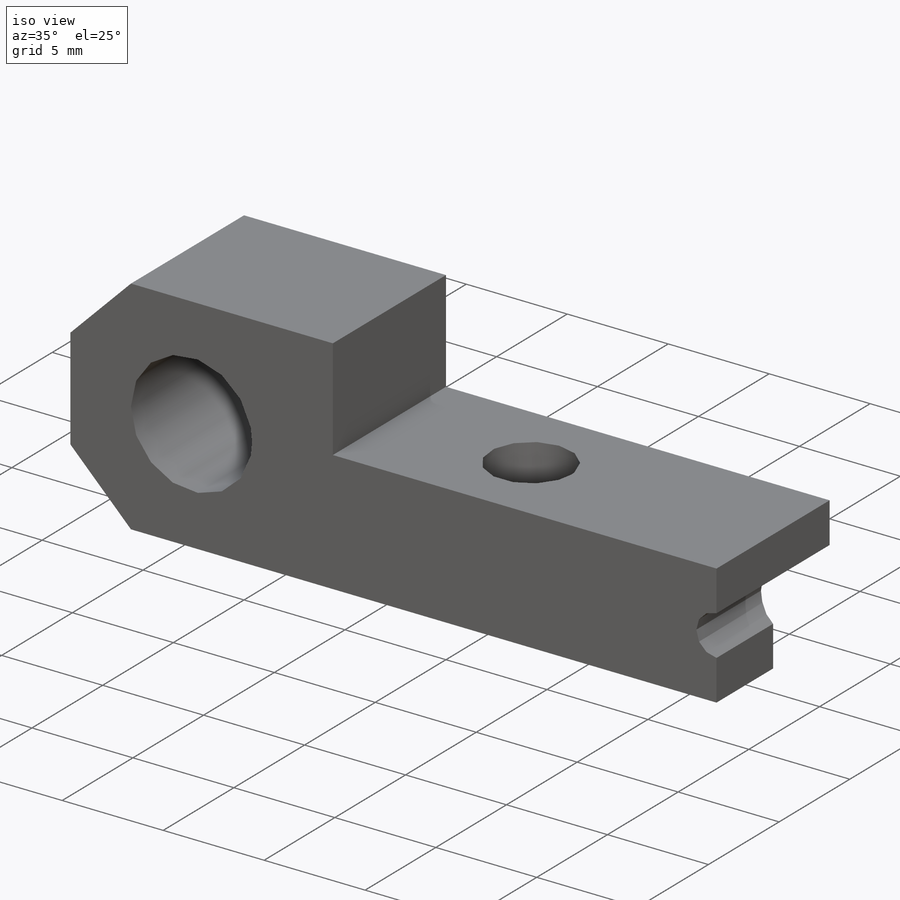
[diagram: iso view]
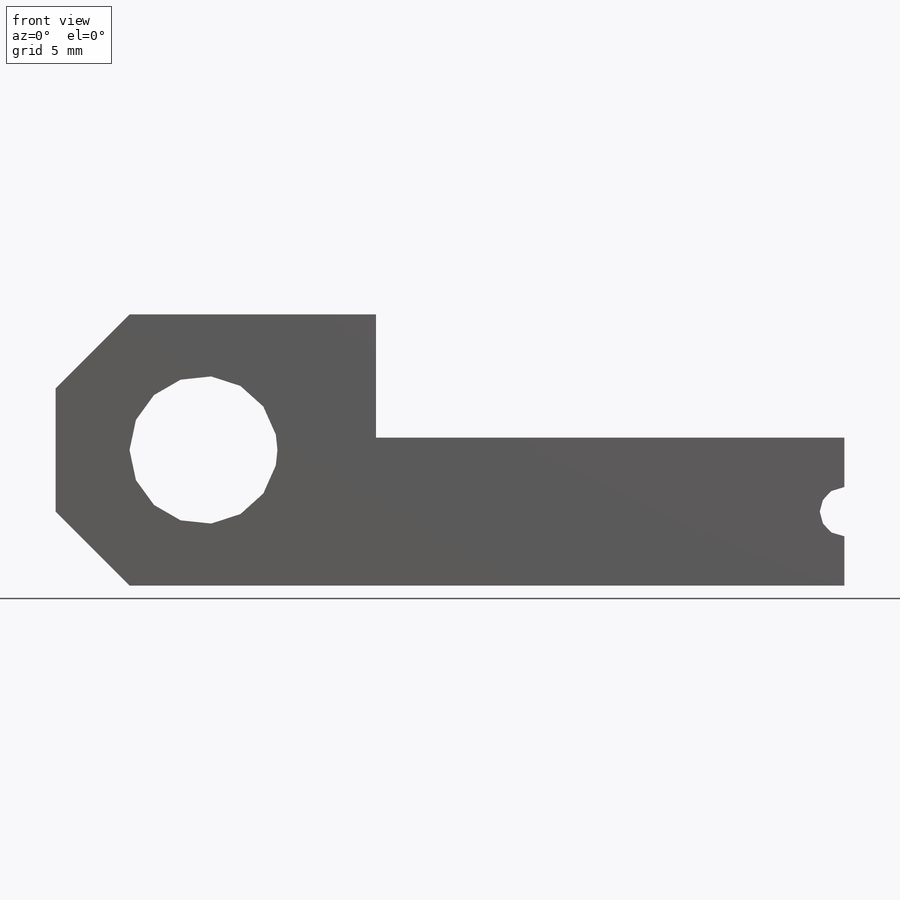
[diagram: front view]
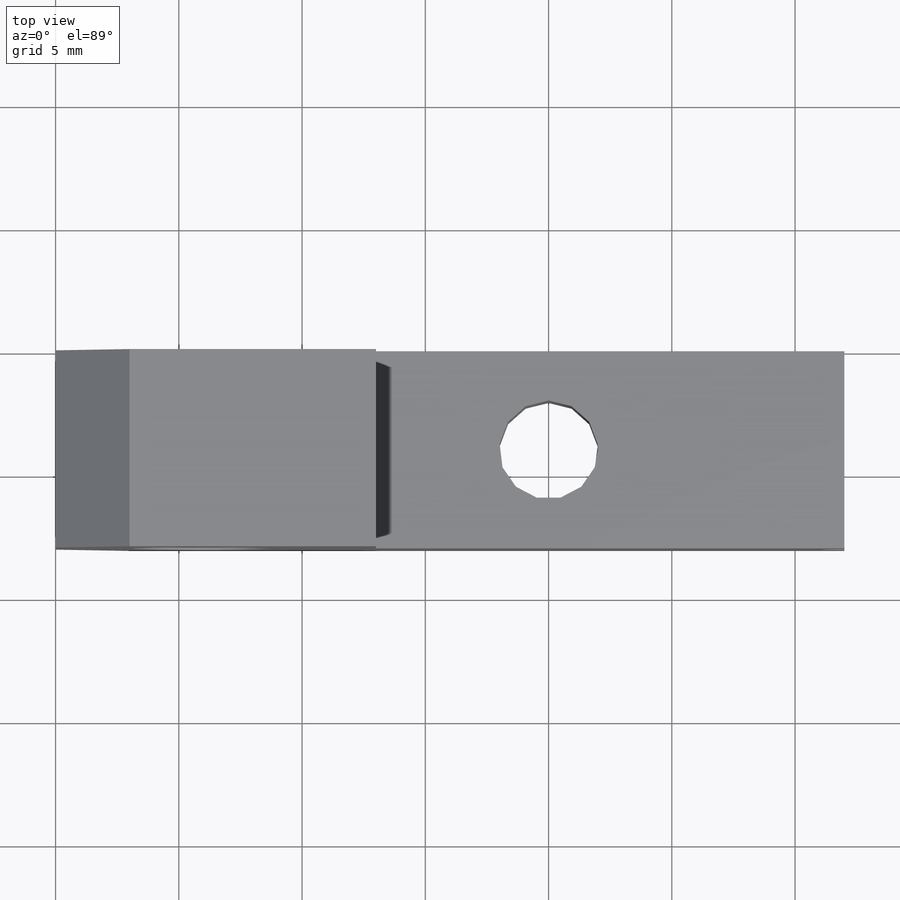
[diagram: top view]
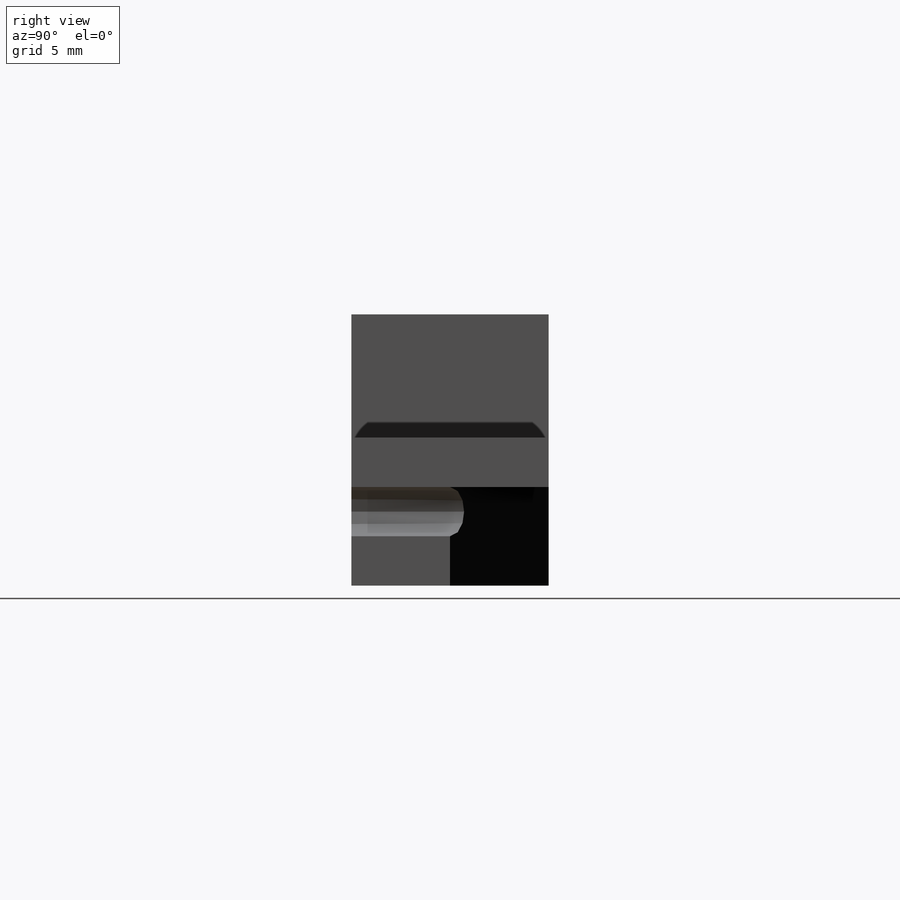
[diagram: right view]
SOLIDWORKS PART (.sldprt)
format: sldprt  version: not decoded by parser v0  size: 190,464 bytes
history: native  units: mm
features: sketch x4, plane x3, cut_extrude x3, material x1, extrude x1, chamfer x1 (+12 scaffold rows collapsed)
feature tree (25):
  scaffold x12  (default folders/planes/origin — collapsed)
  material  "Alliage 7079"
  plane  "Face"
  plane  "Dessus"
  plane  "Droite"
  sketch  "Esquisse1"  dims[c1.D5=6.0mm c1.D1=32.0mm c1.D2=11.0mm c1.D3=5.5mm c1.D4=19.0mm c2.D3=5.0mm c2.D1=19.0mm c2.D2=11.0mm c2.D4=32.0mm c2.D6=6.0mm c3.D4=13.0mm c3.D7=5.5mm]
  extrude  "Extrusion1"  Depth=8mm
  sketch  "Esquisse2"  dims[D1=2.0mm]
  cut_extrude  "Enlèv. mat.-Extru.1"  [1 undecoded]
  sketch  "Esquisse3"  dims[D1=25.0mm D2=4.0mm]
  cut_extrude  "Enlèv. mat.-Extru.4"  Depth=4mm
  sketch  "Esquisse4"  dims[D1=4.0mm D2=12.0mm D3=4.0mm]
  cut_extrude  "Enlèv. mat.-Extru.5"  [1 undecoded]
  chamfer  "Chanfrein1"  Distance=3mm Angle=45deg
decode coverage: 7 of 9 modeling features carry decoded parameters
note: 2 parameter values undecoded
note: suppression state not decoded; provenance and decode notes live in map.json
